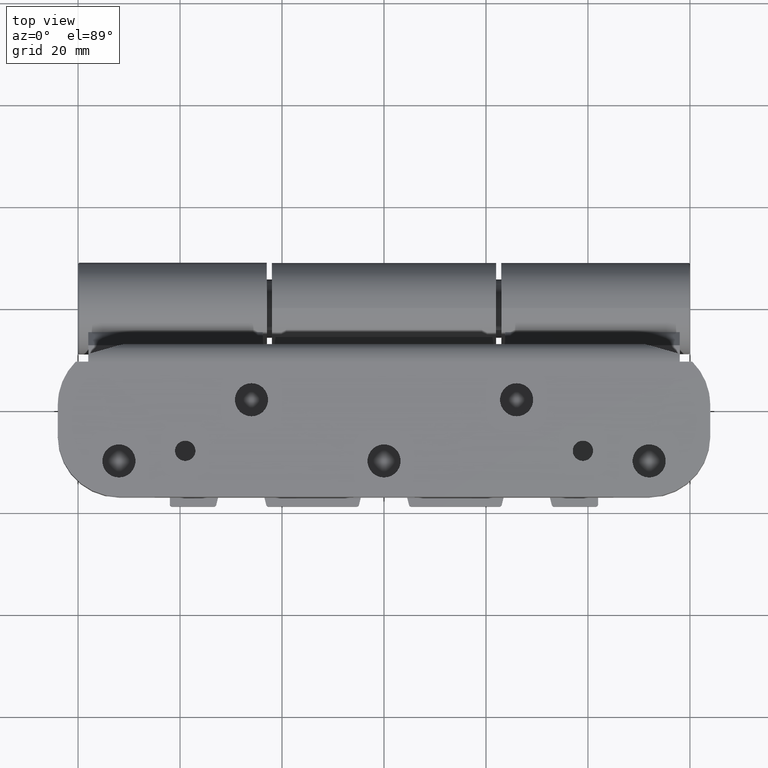
[diagram: clean part render]
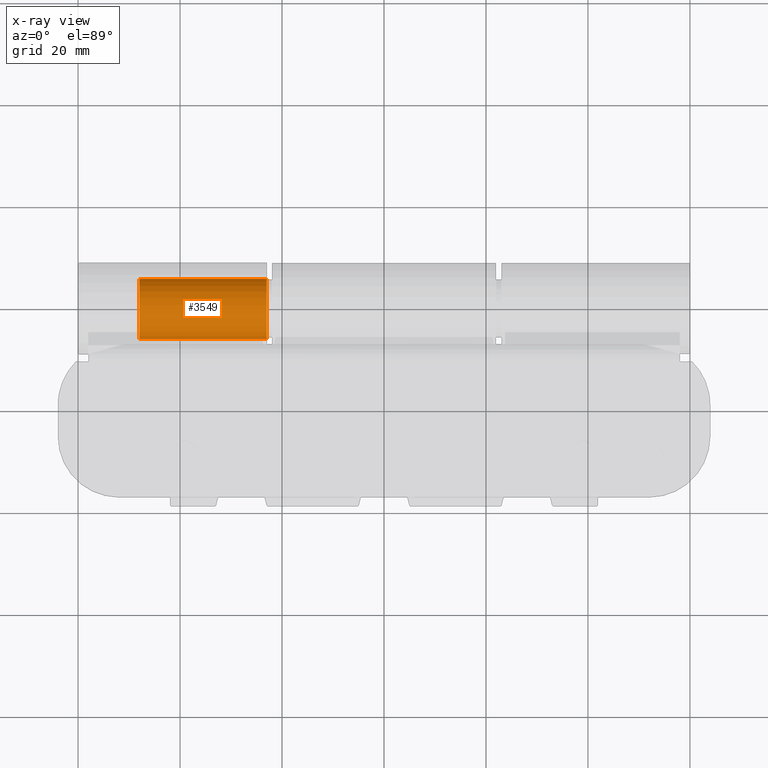
[diagram: x-ray — body ghosted, one internal face saturated and labeled with its STEP entity id]
A machine part, top view, then the same camera in x-ray: the body is ghosted and one INTERNAL B-rep face — a face not visible from any outside direction — is saturated and labeled: STEP entity #3549.
In plain terms, the highlighted cylindrical surface (edge-blend (fillet) strip) has radius 6 mm, axis along (1, 0, 0).
Its self-contained STEP definition (entity closure, byte-faithful):
#168 = DIRECTION ( 'NONE',  ( -1.000000000000000000, -2.457646059305951822E-16, -3.214216435727796411E-16 ) ) ;
#959 = FACE_OUTER_BOUND ( 'NONE', #4250, .T. ) ;
#1093 = ORIENTED_EDGE ( 'NONE', *, *, #14337, .F. ) ;
#2048 = CIRCLE ( 'NONE', #10747, 6.000000000000010658 ) ;
#3549 = ADVANCED_FACE ( 'NONE', ( #959 ), #16027, .F. ) ;
#3640 = ORIENTED_EDGE ( 'NONE', *, *, #3656, .T. ) ;
#3656 = EDGE_CURVE ( 'NONE', #4451, #15963, #18290, .T. ) ;
#4250 = EDGE_LOOP ( 'NONE', ( #1093, #11400, #3640, #19887 ) ) ;
#4387 = DIRECTION ( 'NONE',  ( -1.000000000000000000, -2.457646059305951822E-16, -3.214216435727796411E-16 ) ) ;
#4451 = VERTEX_POINT ( 'NONE', #13896 ) ;
#4654 = DIRECTION ( 'NONE',  ( 5.782411586589346792E-16, -1.110223024625154198E-16, 1.000000000000000000 ) ) ;
#5008 = LINE ( 'NONE', #17125, #14969 ) ;
#5392 = AXIS2_PLACEMENT_3D ( 'NONE', #7319, #4387, #10247 ) ;
#5418 = CARTESIAN_POINT ( 'NONE',  ( 25.50000000000000355, 6.938893903907228378E-15, -3.469446951953614978E-15 ) ) ;
#5679 = LINE ( 'NONE', #7194, #14243 ) ;
#6062 = CARTESIAN_POINT ( 'NONE',  ( 25.00000000000000355, 8.339815798170736346E-15, -6.000000000000002665 ) ) ;
#6269 = CARTESIAN_POINT ( 'NONE',  ( 24.99999999999999645, 6.272760089132132087E-15, 6.000000000000018652 ) ) ;
#6374 = CARTESIAN_POINT ( 'NONE',  ( 25.00000000000000000, 6.938893903907228378E-15, 2.602085213965211430E-15 ) ) ;
#7194 = CARTESIAN_POINT ( 'NONE',  ( 25.50000000000000000, 8.339815798170736346E-15, -6.000000000000014211 ) ) ;
#7315 = AXIS2_PLACEMENT_3D ( 'NONE', #5418, #16220, #12875 ) ;
#7319 = CARTESIAN_POINT ( 'NONE',  ( 0.000000000000000000, 0.000000000000000000, 0.000000000000000000 ) ) ;
#9881 = EDGE_CURVE ( 'NONE', #19201, #4451, #5679, .T. ) ;
#10247 = DIRECTION ( 'NONE',  ( 3.214216435727797397E-16, -1.110223024625154568E-16, 1.000000000000000000 ) ) ;
#10714 = DIRECTION ( 'NONE',  ( -1.000000000000000000, -2.457646059305951822E-16, -3.214216435727796411E-16 ) ) ;
#10747 = AXIS2_PLACEMENT_3D ( 'NONE', #6374, #16880, #4654 ) ;
#11400 = ORIENTED_EDGE ( 'NONE', *, *, #9881, .T. ) ;
#12875 = DIRECTION ( 'NONE',  ( 5.782411586589346792E-16, -1.110223024625154198E-16, 1.000000000000000000 ) ) ;
#13896 = CARTESIAN_POINT ( 'NONE',  ( 1.928529861436676860E-15, 5.144875921072988131E-15, -6.000000000000000000 ) ) ;
#14243 = VECTOR ( 'NONE', #10714, 1000.000000000000000 ) ;
#14337 = EDGE_CURVE ( 'NONE', #19201, #14392, #2048, .T. ) ;
#14392 = VERTEX_POINT ( 'NONE', #6269 ) ;
#14969 = VECTOR ( 'NONE', #168, 1000.000000000000000 ) ;
#15239 = EDGE_CURVE ( 'NONE', #14392, #15963, #5008, .T. ) ;
#15963 = VERTEX_POINT ( 'NONE', #18761 ) ;
#16027 = CYLINDRICAL_SURFACE ( 'NONE', #7315, 6.000000000000010658 ) ;
#16220 = DIRECTION ( 'NONE',  ( -1.000000000000000000, -2.457646059305951822E-16, -3.214216435727796411E-16 ) ) ;
#16880 = DIRECTION ( 'NONE',  ( -1.000000000000000000, -2.457646059305951822E-16, -3.214216435727796411E-16 ) ) ;
#17125 = CARTESIAN_POINT ( 'NONE',  ( 25.50000000000000355, 6.272760089132134453E-15, 6.000000000000007105 ) ) ;
#18290 = CIRCLE ( 'NONE', #5392, 6.000000000000010658 ) ;
#18761 = CARTESIAN_POINT ( 'NONE',  ( 1.928529861436681988E-15, -6.661338147750939243E-16, 6.000000000000010658 ) ) ;
#19201 = VERTEX_POINT ( 'NONE', #6062 ) ;
#19887 = ORIENTED_EDGE ( 'NONE', *, *, #15239, .F. ) ;